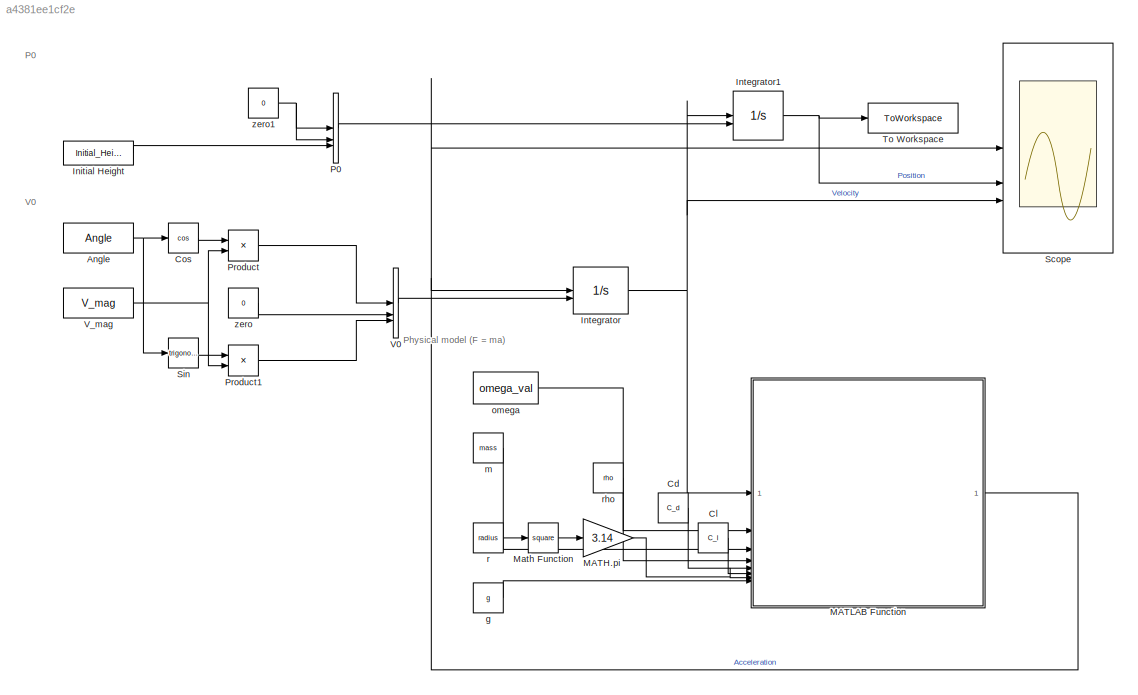
MODEL slx_a4381ee1cf2e
KIND model
CONFIG AbsTol = auto
CONFIG EnableMultiTasking = off
CONFIG FixedStep = auto
CONFIG MaxStep = auto
CONFIG MinStep = auto
CONFIG RelTol = 1e-3
CONFIG SampleTimeConstraint = Unconstrained
CONFIG SolverName = VariableStepAuto
CONFIG StartTime = 0.0
CONFIG StopTime = 5
BLOCK [Constant] Angle
  Value = Angle
BLOCK [Constant] Cd
  Value = C_d
BLOCK [Constant] Cl
  Value = C_l
BLOCK [Trigonometry] Cos
  Operator = cos
BLOCK [Constant] Initial Height
  Value = Initial_Height
BLOCK [Integrator] Integrator
  InitialConditionSource = external
BLOCK [Integrator] Integrator1
  InitialConditionSource = external
BLOCK [Gain] MATH.pi
  Gain = 3.14
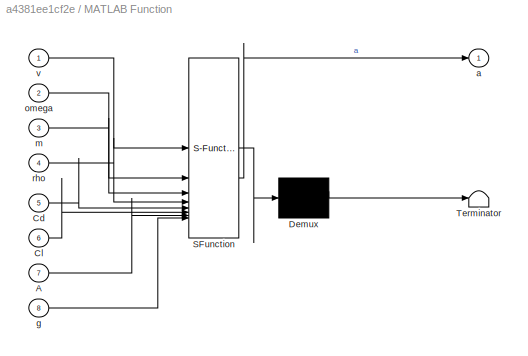
BLOCK [SubSystem] MATLAB Function
  ErrorFcn = Stateflow.Translate.translate
  PermitHierarchicalResolution = ExplicitOnly
  SFBlockType = MATLAB Function
  TreatAsAtomicUnit = on
BLOCK [Demux] MATLAB Function/ Demux 
  Outputs = 1
BLOCK [S-Function] MATLAB Function/ SFunction 
  EnableBusSupport = off
  FunctionName = sf_sfun
  PortCounts = [8 2]
  SFcnIsStateOwnerBlock = off
  SFunctionDeploymentMode = off
  Tag = Stateflow S-Function 2
BLOCK [Terminator] MATLAB Function/ Terminator 
BLOCK [Inport] MATLAB Function/A
  Port = 7
BLOCK [Inport] MATLAB Function/Cd
  Port = 5
BLOCK [Inport] MATLAB Function/Cl
  Port = 6
BLOCK [Outport] MATLAB Function/a
BLOCK [Inport] MATLAB Function/g
  Port = 8
BLOCK [Inport] MATLAB Function/m
  Port = 3
BLOCK [Inport] MATLAB Function/omega
  Port = 2
BLOCK [Inport] MATLAB Function/rho
  Port = 4
BLOCK [Inport] MATLAB Function/v
BLOCK [Math] Math Function
  Operator = square
BLOCK [Concatenate] P0
  NumInputs = 3
BLOCK [Product] Product
BLOCK [Product] Product1
BLOCK [Scope] Scope
  ActiveDisplayYMaximum = 122.50735054986983
  ActiveDisplayYMinimum = -81.3942383913958
  Floating = off
  GraphicalSettings = {"Style":{"BackgroundColor":[0.12941176470588237,0.12941176470588237,0.12941176470588237],"AxesColor":[0.07058823529411765,0.07058823529411765,0.07058823529411765],"LabelsColor":[0.8509803921568627,0.8509803921568627,0.8509803921568627],"PreserveColors":false,"Visible":[true,true,true,true,true,true,true,true,true],"LineStyle":["-","-","-","-","-","-","-","-","-"],"LineWidth":[1.5,1.5,1.5,1.5,1.5,...<+2954ch>
  MultipleDisplayCache = [{"MaxYLimMag":122.50735054986983,"MaxYLimReal":122.50735054986983,"MinYLimMag":0,"MinYLimReal":-81.3942383913958,"PlotAsMagnitudePhase":false,"ShowGrid":true,"ShowLegend":false,"Title":"%<SignalLabel>","YLabel":""}]
  NumInputPorts = 3
  ScopeFrameLocation = window
  WasSavedAsWebScope = on
  WindowPosition = [488.000000,153.000000,706.000000,489.000000,]
BLOCK [Trigonometry] Sin
BLOCK [ToWorkspace] To Workspace
  FixptAsFi = on
  MaxDataPoints = inf
  SampleTime = -1
  SaveFormat = Timeseries
  VariableName = simout
BLOCK [Concatenate] V0
  NumInputs = 3
BLOCK [Constant] V_mag
  Value = V_mag
BLOCK [Constant] g
  Value = g
BLOCK [Constant] m
  Value = mass
BLOCK [Constant] omega
  Value = omega_val
BLOCK [Constant] r
  Value = radius
BLOCK [Constant] rho
  Value = rho
BLOCK [Constant] zero
  Value = 0
BLOCK [Constant] zero1
  Value = 0
ANNOTATION (root): P0
ANNOTATION (root): Physical model (F = ma)
ANNOTATION (root): V0
NET Angle:1 -> Cos:1, Sin:1
LINE Cd:1 -> MATLAB Function:5
LINE Cl:1 -> MATLAB Function:6
LINE Cos:1 -> Product:1
LINE Initial Height:1 -> P0:3
NET Integrator1:1 -> Scope:2, To Workspace:1
NET Integrator:1 -> Integrator1:1, MATLAB Function:1, Scope:3
LINE MATH.pi:1 -> MATLAB Function:7
NET MATLAB Function:1 -> Integrator:1, Scope:1
LINE Math Function:1 -> MATH.pi:1
LINE P0:1 -> Integrator1:2
LINE Product1:1 -> V0:3
LINE Product:1 -> V0:1
LINE Sin:1 -> Product1:1
LINE V0:1 -> Integrator:2
NET V_mag:1 -> Product1:2, Product:2
LINE g:1 -> MATLAB Function:8
LINE m:1 -> MATLAB Function:3
LINE omega:1 -> MATLAB Function:2
LINE r:1 -> Math Function:1
LINE rho:1 -> MATLAB Function:4
NET zero1:1 -> P0:1, P0:2
LINE zero:1 -> V0:2
note: NET lines group one-source signal fan-out (src -> all destinations, sorted); 1:1 wires keep LINE
CHART MATLAB Function states=1 transitions=1
  STATE_LABEL 'eML_blk_kernel()'
  STATE_LABEL 'SCRIPT:\nfunction a = calculate_accel(v, omega, m, rho, Cd, Cl, A, g)\n    % וידוא שכל הוקטורים הם וקטורי עמודה\n    v = v(:); \n    omega = omega(:);\n    v_mag = norm(v);\n    \n    % כוחות\n    Fg = [0; 0; -m*g]; % כוח כבידה תמיד ב-Z\n    Fd = -0.5 * rho * Cd * A * v_mag * v;\n    Fm = 0.5 * rho * Cl * A * cross(omega, v); % מכפלה וקטורית יוצרת את ה-3D\n    \n    a = (Fg + Fd + Fm) / m;\nend'
CHART  states=0 transitions=0
